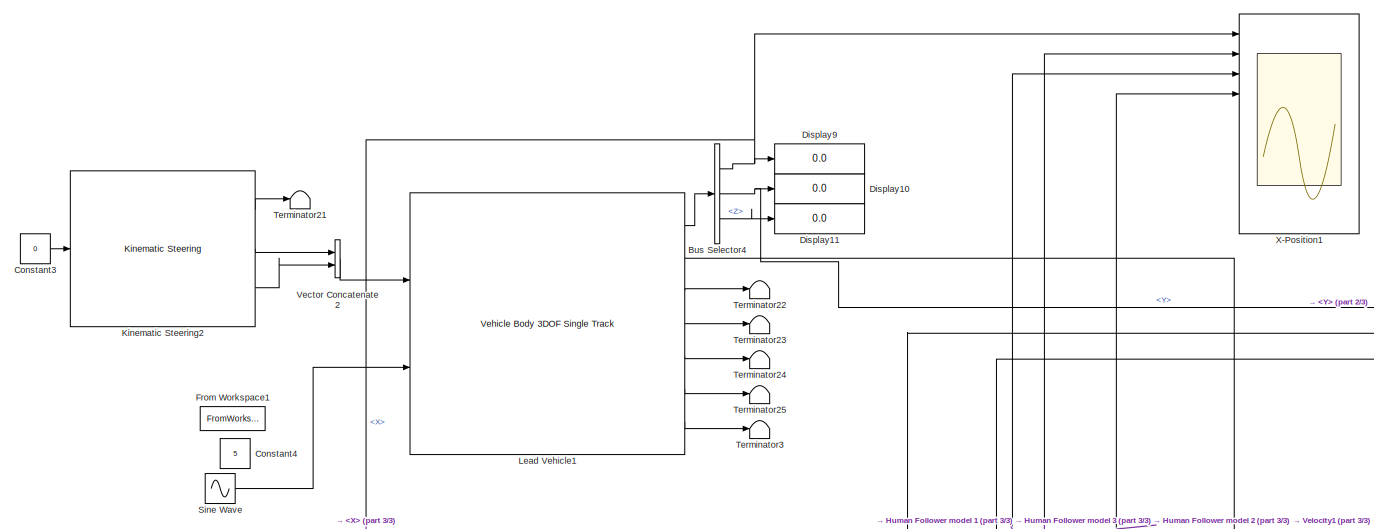
[diagram: root canvas - part 1/3, full width, top band]
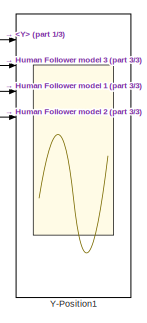
[diagram: root canvas - part 2/3, middle right region]
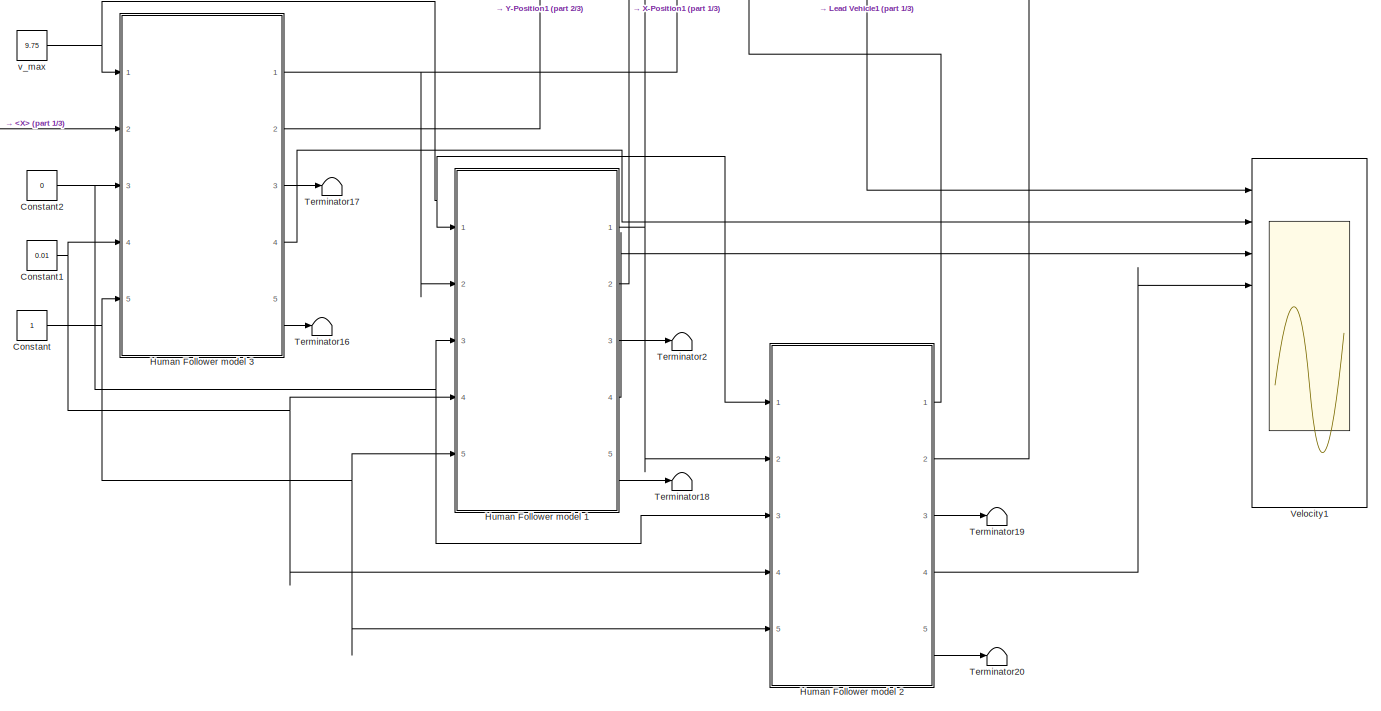
[diagram: root canvas - part 3/3, full width, bottom band]
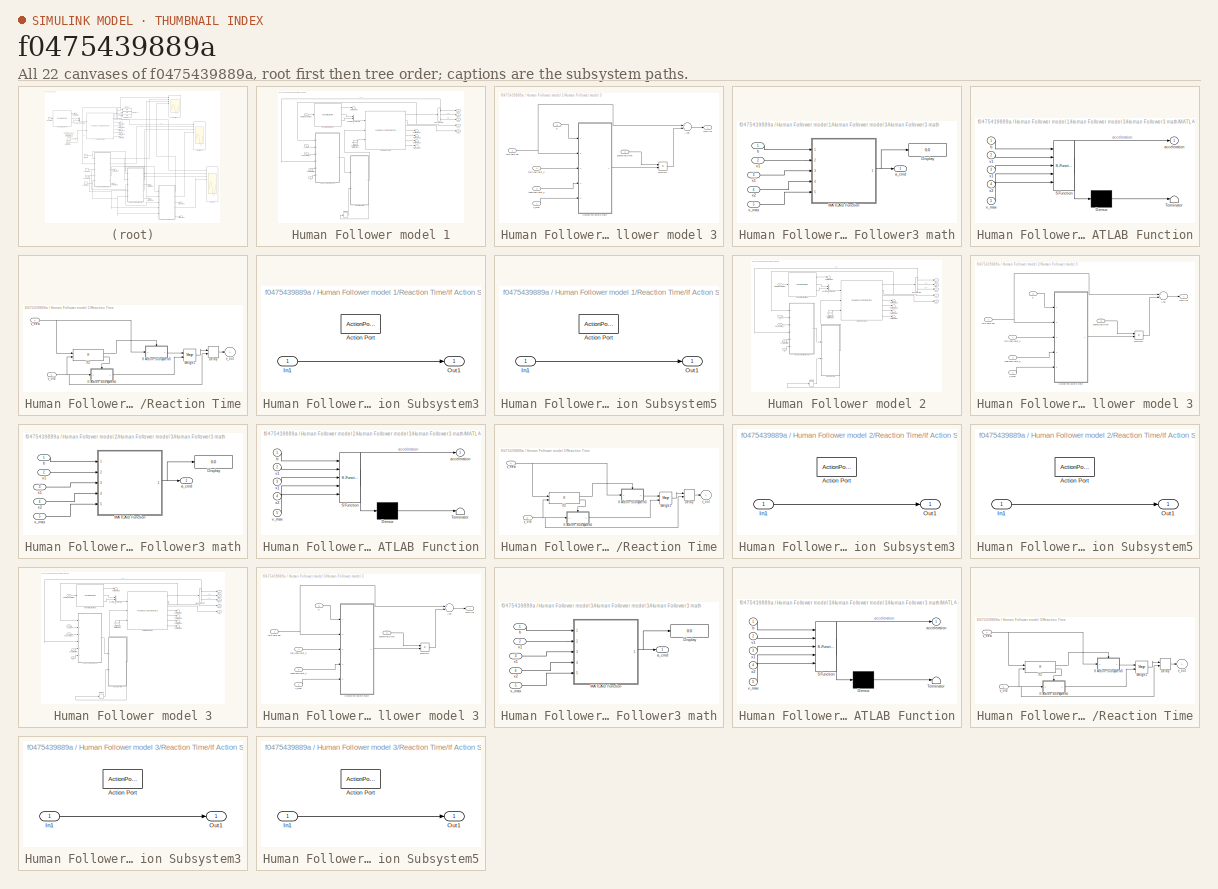
[diagram: thumbnail index - all 22 canvases of the model, root first then tree order]
MODEL slx_f0475439889a
KIND model
CONFIG AbsTol = auto
CONFIG EnableMultiTasking = off
CONFIG FixedStep = auto
CONFIG MaxStep = auto
CONFIG MinStep = auto
CONFIG RelTol = 1e-3
CONFIG SampleTimeConstraint = Unconstrained
CONFIG Solver = VariableStepAuto
CONFIG SolverName = VariableStepAuto
CONFIG StartTime = 0.0
CONFIG StopTime = 100
BLOCK [BusSelector] Bus Selector4
  OutputAsBus = off
  OutputSignals = InertFrm.Geom.Disp.X,InertFrm.Geom.Disp.Y,InertFrm.Geom.Disp.Z
  Ports = [1, 3]
BLOCK [Constant] Constant
BLOCK [Constant] Constant1
  Value = 0.01
BLOCK [Constant] Constant2
  Value = 0
BLOCK [Constant] Constant3
  Value = 0
BLOCK [Constant] Constant4
  Value = 5
BLOCK [Display] Display10
  Decimation = 1
  Ports = [1]
BLOCK [Display] Display11
  Decimation = 1
  Ports = [1]
BLOCK [Display] Display9
  Decimation = 1
  Ports = [1]
BLOCK [FromWorkspace] From Workspace1
  Commented = on
  SampleTime = 0.1
  VariableName = vel_car_1
  ZeroCross = on
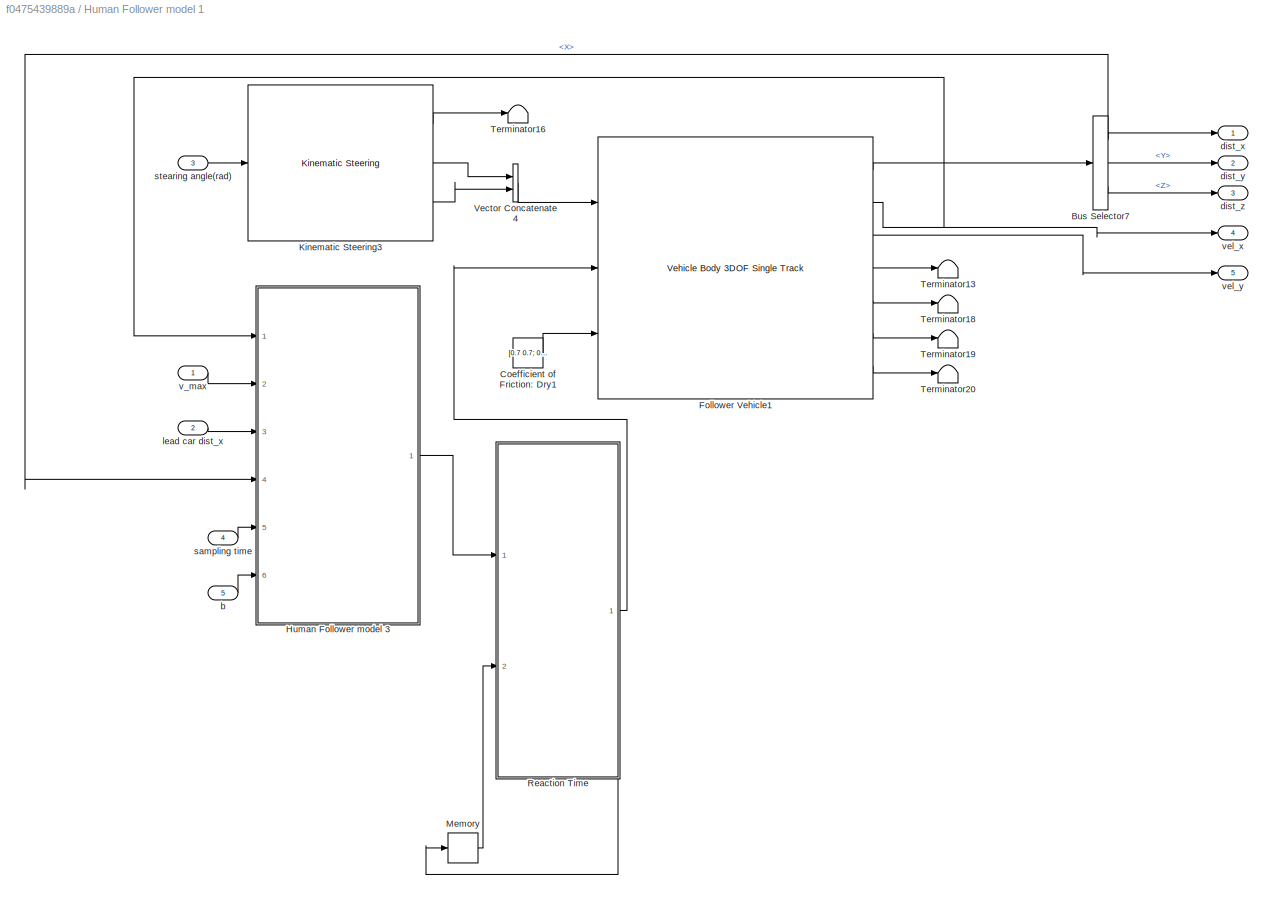
BLOCK [SubSystem] Human Follower model 1
  Ports = [5, 5]
  RequestExecContextInheritance = off
BLOCK [BusSelector] Human Follower model 1/Bus Selector7
  OutputAsBus = off
  OutputSignals = InertFrm.Cg.Disp.X,InertFrm.Cg.Disp.Y,InertFrm.Cg.Disp.Z
  Ports = [1, 3]
BLOCK [Constant] Human Follower model 1/Coefficient of Friction: Dry1
  Value = [0.7 0.7; 0.7 0.7]
BLOCK [Reference] Human Follower model 1/Follower Vehicle1  REF=autolibshared/Vehicle Body 3DOF Single Track
  Ports = [3, 7]
  SourceBlock = autolibshared/Vehicle Body 3DOF Single Track
  SourceProductBaseCode = PW
  SourceProductName = Powertrain Blockset
  SourceType = Vehicle Body 3DOF Lateral
BLOCK [SubSystem] Human Follower model 1/Human Follower model 3
  Ports = [6, 1]
  RequestExecContextInheritance = off
BLOCK [Sum] Human Follower model 1/Human Follower model 3/Add
  InputSameDT = off
  OutDataTypeStr = Inherit: Inherit via internal rule
  Ports = [2, 1]
  SaturateOnIntegerOverflow = off
BLOCK [SubSystem] Human Follower model 1/Human Follower model 3/Human Follower3 math
  Ports = [5, 1]
  RequestExecContextInheritance = off
BLOCK [Display] Human Follower model 1/Human Follower model 3/Human Follower3 math/Display
  Decimation = 1
  Ports = [1]
BLOCK [SubSystem] Human Follower model 1/Human Follower model 3/Human Follower3 math/MATLAB Function
  ErrorFcn = Stateflow.Translate.translate
  PermitHierarchicalResolution = ExplicitOnly
  Ports = [5, 1]
  RequestExecContextInheritance = off
  SFBlockType = MATLAB Function
  TreatAsAtomicUnit = on
BLOCK [Demux] Human Follower model 1/Human Follower model 3/Human Follower3 math/MATLAB Function/ Demux 
  Outputs = 1
  Ports = [1, 1]
BLOCK [S-Function] Human Follower model 1/Human Follower model 3/Human Follower3 math/MATLAB Function/ SFunction 
  EnableBusSupport = on
  FunctionName = sf_sfun
  PortCounts = [5 2]
  Ports = [5, 2]
  SFcnIsStateOwnerBlock = off
  SFunctionDeploymentMode = off
  Tag = Stateflow S-Function carPlant_OMVBandoHFHumanFollower_4 1
BLOCK [Terminator] Human Follower model 1/Human Follower model 3/Human Follower3 math/MATLAB Function/ Terminator 
BLOCK [Outport] Human Follower model 1/Human Follower model 3/Human Follower3 math/MATLAB Function/acceleration
  IconDisplay = Port number
BLOCK [Inport] Human Follower model 1/Human Follower model 3/Human Follower3 math/MATLAB Function/b
  IconDisplay = Port number
BLOCK [Inport] Human Follower model 1/Human Follower model 3/Human Follower3 math/MATLAB Function/v1
  IconDisplay = Port number
  Port = 2
BLOCK [Inport] Human Follower model 1/Human Follower model 3/Human Follower3 math/MATLAB Function/v_max
  IconDisplay = Port number
  Port = 5
BLOCK [Inport] Human Follower model 1/Human Follower model 3/Human Follower3 math/MATLAB Function/x1
  IconDisplay = Port number
  Port = 3
BLOCK [Inport] Human Follower model 1/Human Follower model 3/Human Follower3 math/MATLAB Function/x2
  IconDisplay = Port number
  Port = 4
BLOCK [Outport] Human Follower model 1/Human Follower model 3/Human Follower3 math/a_cmd
  IconDisplay = Port number
BLOCK [Inport] Human Follower model 1/Human Follower model 3/Human Follower3 math/b
  IconDisplay = Port number
BLOCK [Inport] Human Follower model 1/Human Follower model 3/Human Follower3 math/v1
  IconDisplay = Port number
  Port = 2
BLOCK [Inport] Human Follower model 1/Human Follower model 3/Human Follower3 math/v_max
  IconDisplay = Port number
  Port = 5
BLOCK [Inport] Human Follower model 1/Human Follower model 3/Human Follower3 math/x1
  IconDisplay = Port number
  Port = 3
BLOCK [Inport] Human Follower model 1/Human Follower model 3/Human Follower3 math/x2
  IconDisplay = Port number
  Port = 4
BLOCK [Product] Human Follower model 1/Human Follower model 3/Multiply
  InputSameDT = off
  OutDataTypeStr = Inherit: Inherit via internal rule
  Ports = [2, 1]
  RndMeth = Floor
  SaturateOnIntegerOverflow = off
BLOCK [Inport] Human Follower model 1/Human Follower model 3/b
  IconDisplay = Port number
  Port = 6
BLOCK [Outport] Human Follower model 1/Human Follower model 3/cmd Vel
  IconDisplay = Port number
BLOCK [Inport] Human Follower model 1/Human Follower model 3/lead cars dist_x
  IconDisplay = Port number
  Port = 3
BLOCK [Inport] Human Follower model 1/Human Follower model 3/sampling time
  IconDisplay = Port number
  Port = 5
BLOCK [Inport] Human Follower model 1/Human Follower model 3/this cars dist_x
  IconDisplay = Port number
  Port = 4
BLOCK [Inport] Human Follower model 1/Human Follower model 3/this cars vel
  IconDisplay = Port number
BLOCK [Inport] Human Follower model 1/Human Follower model 3/v_max
  IconDisplay = Port number
  Port = 2
BLOCK [Reference] Human Follower model 1/Kinematic Steering3  REF=vehdynlibsteering/Kinematic Steering
  Ports = [1, 3]
  SourceBlock = vehdynlibsteering/Kinematic Steering
  SourceProductBaseCode = VE
  SourceProductName = Vehicle Dynamics Blockset
  SourceType = Kinematic Steering
BLOCK [Memory] Human Follower model 1/Memory
BLOCK [SubSystem] Human Follower model 1/Reaction Time
  Ports = [2, 1]
  RequestExecContextInheritance = off
BLOCK [Delay] Human Follower model 1/Reaction Time/Delay
  InitialConditionSource = Input port
  InputPortMap = u0,p4
  Ports = [2, 1]
BLOCK [SubSystem] Human Follower model 1/Reaction Time/If Action Subsystem3
  Ports = [1, 1, 0, 0, 0, 0, 0, 1]
  RequestExecContextInheritance = off
  TreatAsAtomicUnit = on
BLOCK [ActionPort] Human Follower model 1/Reaction Time/If Action Subsystem3/Action Port
  ActionType = then
BLOCK [Inport] Human Follower model 1/Reaction Time/If Action Subsystem3/In1
  IconDisplay = Port number
BLOCK [Outport] Human Follower model 1/Reaction Time/If Action Subsystem3/Out1
  IconDisplay = Port number
BLOCK [SubSystem] Human Follower model 1/Reaction Time/If Action Subsystem5
  Ports = [1, 1, 0, 0, 0, 0, 0, 1]
  RequestExecContextInheritance = off
  TreatAsAtomicUnit = on
BLOCK [ActionPort] Human Follower model 1/Reaction Time/If Action Subsystem5/Action Port
  ActionType = else
BLOCK [Inport] Human Follower model 1/Reaction Time/If Action Subsystem5/In1
  IconDisplay = Port number
BLOCK [Outport] Human Follower model 1/Reaction Time/If Action Subsystem5/Out1
  IconDisplay = Port number
BLOCK [If] Human Follower model 1/Reaction Time/If2
  IfExpression = u2 ~= u1
  NumInputs = 2
  Ports = [2, 2]
BLOCK [Merge] Human Follower model 1/Reaction Time/Merge1
  Ports = [2, 1]
BLOCK [Inport] Human Follower model 1/Reaction Time/v_new
  IconDisplay = Port number
BLOCK [Inport] Human Follower model 1/Reaction Time/v_old
  IconDisplay = Port number
  Port = 2
BLOCK [Outport] Human Follower model 1/Reaction Time/v_out
  IconDisplay = Port number
BLOCK [Terminator] Human Follower model 1/Terminator13
BLOCK [Terminator] Human Follower model 1/Terminator16
BLOCK [Terminator] Human Follower model 1/Terminator18
BLOCK [Terminator] Human Follower model 1/Terminator19
BLOCK [Terminator] Human Follower model 1/Terminator20
BLOCK [Concatenate] Human Follower model 1/Vector Concatenate4
  Ports = [2, 1]
BLOCK [Inport] Human Follower model 1/b
  IconDisplay = Port number
  Port = 5
BLOCK [Outport] Human Follower model 1/dist_x
  IconDisplay = Port number
BLOCK [Outport] Human Follower model 1/dist_y
  IconDisplay = Port number
  Port = 2
BLOCK [Outport] Human Follower model 1/dist_z
  IconDisplay = Port number
  Port = 3
BLOCK [Inport] Human Follower model 1/lead car dist_x
  IconDisplay = Port number
  Port = 2
BLOCK [Inport] Human Follower model 1/sampling time
  IconDisplay = Port number
  Port = 4
BLOCK [Inport] Human Follower model 1/stearing angle(rad)
  IconDisplay = Port number
  Port = 3
BLOCK [Inport] Human Follower model 1/v_max
  IconDisplay = Port number
BLOCK [Outport] Human Follower model 1/vel_x
  IconDisplay = Port number
  Port = 4
BLOCK [Outport] Human Follower model 1/vel_y
  IconDisplay = Port number
  Port = 5
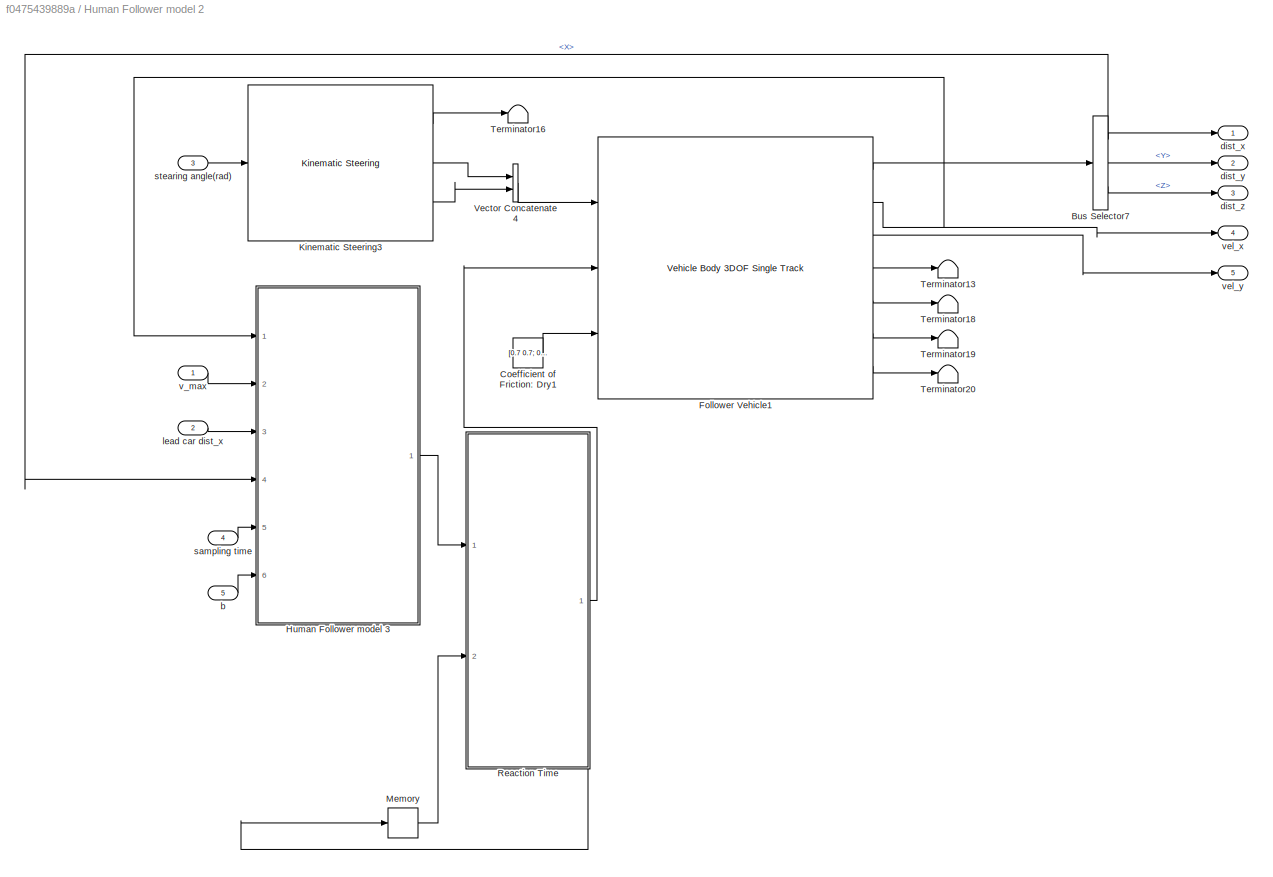
BLOCK [SubSystem] Human Follower model 2
  Ports = [5, 5]
  RequestExecContextInheritance = off
BLOCK [BusSelector] Human Follower model 2/Bus Selector7
  OutputAsBus = off
  OutputSignals = InertFrm.Cg.Disp.X,InertFrm.Cg.Disp.Y,InertFrm.Cg.Disp.Z
  Ports = [1, 3]
BLOCK [Constant] Human Follower model 2/Coefficient of Friction: Dry1
  Value = [0.7 0.7; 0.7 0.7]
BLOCK [Reference] Human Follower model 2/Follower Vehicle1  REF=autolibshared/Vehicle Body 3DOF Single Track
  Ports = [3, 7]
  SourceBlock = autolibshared/Vehicle Body 3DOF Single Track
  SourceProductBaseCode = PW
  SourceProductName = Powertrain Blockset
  SourceType = Vehicle Body 3DOF Lateral
BLOCK [SubSystem] Human Follower model 2/Human Follower model 3
  Ports = [6, 1]
  RequestExecContextInheritance = off
BLOCK [Sum] Human Follower model 2/Human Follower model 3/Add
  InputSameDT = off
  OutDataTypeStr = Inherit: Inherit via internal rule
  Ports = [2, 1]
  SaturateOnIntegerOverflow = off
BLOCK [SubSystem] Human Follower model 2/Human Follower model 3/Human Follower3 math
  Ports = [5, 1]
  RequestExecContextInheritance = off
BLOCK [Display] Human Follower model 2/Human Follower model 3/Human Follower3 math/Display
  Decimation = 1
  Ports = [1]
BLOCK [SubSystem] Human Follower model 2/Human Follower model 3/Human Follower3 math/MATLAB Function
  ErrorFcn = Stateflow.Translate.translate
  PermitHierarchicalResolution = ExplicitOnly
  Ports = [5, 1]
  RequestExecContextInheritance = off
  SFBlockType = MATLAB Function
  TreatAsAtomicUnit = on
BLOCK [Demux] Human Follower model 2/Human Follower model 3/Human Follower3 math/MATLAB Function/ Demux 
  Outputs = 1
  Ports = [1, 1]
BLOCK [S-Function] Human Follower model 2/Human Follower model 3/Human Follower3 math/MATLAB Function/ SFunction 
  EnableBusSupport = on
  FunctionName = sf_sfun
  PortCounts = [5 2]
  Ports = [5, 2]
  SFcnIsStateOwnerBlock = off
  SFunctionDeploymentMode = off
  Tag = Stateflow S-Function carPlant_OMVBandoHFHumanFollower_4 2
BLOCK [Terminator] Human Follower model 2/Human Follower model 3/Human Follower3 math/MATLAB Function/ Terminator 
BLOCK [Outport] Human Follower model 2/Human Follower model 3/Human Follower3 math/MATLAB Function/acceleration
  IconDisplay = Port number
BLOCK [Inport] Human Follower model 2/Human Follower model 3/Human Follower3 math/MATLAB Function/b
  IconDisplay = Port number
BLOCK [Inport] Human Follower model 2/Human Follower model 3/Human Follower3 math/MATLAB Function/v1
  IconDisplay = Port number
  Port = 2
BLOCK [Inport] Human Follower model 2/Human Follower model 3/Human Follower3 math/MATLAB Function/v_max
  IconDisplay = Port number
  Port = 5
BLOCK [Inport] Human Follower model 2/Human Follower model 3/Human Follower3 math/MATLAB Function/x1
  IconDisplay = Port number
  Port = 3
BLOCK [Inport] Human Follower model 2/Human Follower model 3/Human Follower3 math/MATLAB Function/x2
  IconDisplay = Port number
  Port = 4
BLOCK [Outport] Human Follower model 2/Human Follower model 3/Human Follower3 math/a_cmd
  IconDisplay = Port number
BLOCK [Inport] Human Follower model 2/Human Follower model 3/Human Follower3 math/b
  IconDisplay = Port number
BLOCK [Inport] Human Follower model 2/Human Follower model 3/Human Follower3 math/v1
  IconDisplay = Port number
  Port = 2
BLOCK [Inport] Human Follower model 2/Human Follower model 3/Human Follower3 math/v_max
  IconDisplay = Port number
  Port = 5
BLOCK [Inport] Human Follower model 2/Human Follower model 3/Human Follower3 math/x1
  IconDisplay = Port number
  Port = 3
BLOCK [Inport] Human Follower model 2/Human Follower model 3/Human Follower3 math/x2
  IconDisplay = Port number
  Port = 4
BLOCK [Product] Human Follower model 2/Human Follower model 3/Multiply
  InputSameDT = off
  OutDataTypeStr = Inherit: Inherit via internal rule
  Ports = [2, 1]
  RndMeth = Floor
  SaturateOnIntegerOverflow = off
BLOCK [Inport] Human Follower model 2/Human Follower model 3/b
  IconDisplay = Port number
  Port = 6
BLOCK [Outport] Human Follower model 2/Human Follower model 3/cmd Vel
  IconDisplay = Port number
BLOCK [Inport] Human Follower model 2/Human Follower model 3/lead cars dist_x
  IconDisplay = Port number
  Port = 3
BLOCK [Inport] Human Follower model 2/Human Follower model 3/sampling time
  IconDisplay = Port number
  Port = 5
BLOCK [Inport] Human Follower model 2/Human Follower model 3/this cars dist_x
  IconDisplay = Port number
  Port = 4
BLOCK [Inport] Human Follower model 2/Human Follower model 3/this cars vel
  IconDisplay = Port number
BLOCK [Inport] Human Follower model 2/Human Follower model 3/v_max
  IconDisplay = Port number
  Port = 2
BLOCK [Reference] Human Follower model 2/Kinematic Steering3  REF=vehdynlibsteering/Kinematic Steering
  Ports = [1, 3]
  SourceBlock = vehdynlibsteering/Kinematic Steering
  SourceProductBaseCode = VE
  SourceProductName = Vehicle Dynamics Blockset
  SourceType = Kinematic Steering
BLOCK [Memory] Human Follower model 2/Memory
BLOCK [SubSystem] Human Follower model 2/Reaction Time
  Ports = [2, 1]
  RequestExecContextInheritance = off
BLOCK [Delay] Human Follower model 2/Reaction Time/Delay
  InitialConditionSource = Input port
  InputPortMap = u0,p4
  Ports = [2, 1]
BLOCK [SubSystem] Human Follower model 2/Reaction Time/If Action Subsystem3
  Ports = [1, 1, 0, 0, 0, 0, 0, 1]
  RequestExecContextInheritance = off
  TreatAsAtomicUnit = on
BLOCK [ActionPort] Human Follower model 2/Reaction Time/If Action Subsystem3/Action Port
  ActionType = then
BLOCK [Inport] Human Follower model 2/Reaction Time/If Action Subsystem3/In1
  IconDisplay = Port number
BLOCK [Outport] Human Follower model 2/Reaction Time/If Action Subsystem3/Out1
  IconDisplay = Port number
BLOCK [SubSystem] Human Follower model 2/Reaction Time/If Action Subsystem5
  Ports = [1, 1, 0, 0, 0, 0, 0, 1]
  RequestExecContextInheritance = off
  TreatAsAtomicUnit = on
BLOCK [ActionPort] Human Follower model 2/Reaction Time/If Action Subsystem5/Action Port
  ActionType = else
BLOCK [Inport] Human Follower model 2/Reaction Time/If Action Subsystem5/In1
  IconDisplay = Port number
BLOCK [Outport] Human Follower model 2/Reaction Time/If Action Subsystem5/Out1
  IconDisplay = Port number
BLOCK [If] Human Follower model 2/Reaction Time/If2
  IfExpression = u2 ~= u1
  NumInputs = 2
  Ports = [2, 2]
BLOCK [Merge] Human Follower model 2/Reaction Time/Merge1
  Ports = [2, 1]
BLOCK [Inport] Human Follower model 2/Reaction Time/v_new
  IconDisplay = Port number
BLOCK [Inport] Human Follower model 2/Reaction Time/v_old
  IconDisplay = Port number
  Port = 2
BLOCK [Outport] Human Follower model 2/Reaction Time/v_out
  IconDisplay = Port number
BLOCK [Terminator] Human Follower model 2/Terminator13
BLOCK [Terminator] Human Follower model 2/Terminator16
BLOCK [Terminator] Human Follower model 2/Terminator18
BLOCK [Terminator] Human Follower model 2/Terminator19
BLOCK [Terminator] Human Follower model 2/Terminator20
BLOCK [Concatenate] Human Follower model 2/Vector Concatenate4
  Ports = [2, 1]
BLOCK [Inport] Human Follower model 2/b
  IconDisplay = Port number
  Port = 5
BLOCK [Outport] Human Follower model 2/dist_x
  IconDisplay = Port number
BLOCK [Outport] Human Follower model 2/dist_y
  IconDisplay = Port number
  Port = 2
BLOCK [Outport] Human Follower model 2/dist_z
  IconDisplay = Port number
  Port = 3
BLOCK [Inport] Human Follower model 2/lead car dist_x
  IconDisplay = Port number
  Port = 2
BLOCK [Inport] Human Follower model 2/sampling time
  IconDisplay = Port number
  Port = 4
BLOCK [Inport] Human Follower model 2/stearing angle(rad)
  IconDisplay = Port number
  Port = 3
BLOCK [Inport] Human Follower model 2/v_max
  IconDisplay = Port number
BLOCK [Outport] Human Follower model 2/vel_x
  IconDisplay = Port number
  Port = 4
BLOCK [Outport] Human Follower model 2/vel_y
  IconDisplay = Port number
  Port = 5
BLOCK [SubSystem] Human Follower model 3
  Ports = [5, 5]
  RequestExecContextInheritance = off
BLOCK [BusSelector] Human Follower model 3/Bus Selector7
  OutputAsBus = off
  OutputSignals = InertFrm.Cg.Disp.X,InertFrm.Cg.Disp.Y,InertFrm.Cg.Disp.Z
  Ports = [1, 3]
BLOCK [Constant] Human Follower model 3/Coefficient of Friction: Dry1
  Value = [0.7 0.7; 0.7 0.7]
BLOCK [Reference] Human Follower model 3/Follower Vehicle1  REF=autolibshared/Vehicle Body 3DOF Single Track
  Ports = [3, 7]
  SourceBlock = autolibshared/Vehicle Body 3DOF Single Track
  SourceProductBaseCode = PW
  SourceProductName = Powertrain Blockset
  SourceType = Vehicle Body 3DOF Lateral
BLOCK [SubSystem] Human Follower model 3/Human Follower model 3
  Ports = [6, 1]
  RequestExecContextInheritance = off
BLOCK [Sum] Human Follower model 3/Human Follower model 3/Add
  InputSameDT = off
  OutDataTypeStr = Inherit: Inherit via internal rule
  Ports = [2, 1]
  SaturateOnIntegerOverflow = off
BLOCK [SubSystem] Human Follower model 3/Human Follower model 3/Human Follower3 math
  Ports = [5, 1]
  RequestExecContextInheritance = off
BLOCK [Display] Human Follower model 3/Human Follower model 3/Human Follower3 math/Display
  Decimation = 1
  Ports = [1]
BLOCK [SubSystem] Human Follower model 3/Human Follower model 3/Human Follower3 math/MATLAB Function
  ErrorFcn = Stateflow.Translate.translate
  PermitHierarchicalResolution = ExplicitOnly
  Ports = [5, 1]
  RequestExecContextInheritance = off
  SFBlockType = MATLAB Function
  TreatAsAtomicUnit = on
BLOCK [Demux] Human Follower model 3/Human Follower model 3/Human Follower3 math/MATLAB Function/ Demux 
  Outputs = 1
  Ports = [1, 1]
BLOCK [S-Function] Human Follower model 3/Human Follower model 3/Human Follower3 math/MATLAB Function/ SFunction 
  EnableBusSupport = on
  FunctionName = sf_sfun
  PortCounts = [5 2]
  Ports = [5, 2]
  SFcnIsStateOwnerBlock = off
  SFunctionDeploymentMode = off
  Tag = Stateflow S-Function carPlant_OMVBandoHFHumanFollower_4 5
BLOCK [Terminator] Human Follower model 3/Human Follower model 3/Human Follower3 math/MATLAB Function/ Terminator 
BLOCK [Outport] Human Follower model 3/Human Follower model 3/Human Follower3 math/MATLAB Function/acceleration
  IconDisplay = Port number
BLOCK [Inport] Human Follower model 3/Human Follower model 3/Human Follower3 math/MATLAB Function/b
  IconDisplay = Port number
BLOCK [Inport] Human Follower model 3/Human Follower model 3/Human Follower3 math/MATLAB Function/v1
  IconDisplay = Port number
  Port = 2
BLOCK [Inport] Human Follower model 3/Human Follower model 3/Human Follower3 math/MATLAB Function/v_max
  IconDisplay = Port number
  Port = 5
BLOCK [Inport] Human Follower model 3/Human Follower model 3/Human Follower3 math/MATLAB Function/x1
  IconDisplay = Port number
  Port = 3
BLOCK [Inport] Human Follower model 3/Human Follower model 3/Human Follower3 math/MATLAB Function/x2
  IconDisplay = Port number
  Port = 4
BLOCK [Outport] Human Follower model 3/Human Follower model 3/Human Follower3 math/a_cmd
  IconDisplay = Port number
BLOCK [Inport] Human Follower model 3/Human Follower model 3/Human Follower3 math/b
  IconDisplay = Port number
BLOCK [Inport] Human Follower model 3/Human Follower model 3/Human Follower3 math/v1
  IconDisplay = Port number
  Port = 2
BLOCK [Inport] Human Follower model 3/Human Follower model 3/Human Follower3 math/v_max
  IconDisplay = Port number
  Port = 5
BLOCK [Inport] Human Follower model 3/Human Follower model 3/Human Follower3 math/x1
  IconDisplay = Port number
  Port = 3
BLOCK [Inport] Human Follower model 3/Human Follower model 3/Human Follower3 math/x2
  IconDisplay = Port number
  Port = 4
BLOCK [Product] Human Follower model 3/Human Follower model 3/Multiply
  InputSameDT = off
  OutDataTypeStr = Inherit: Inherit via internal rule
  Ports = [2, 1]
  RndMeth = Floor
  SaturateOnIntegerOverflow = off
BLOCK [Inport] Human Follower model 3/Human Follower model 3/b
  IconDisplay = Port number
  Port = 6
BLOCK [Outport] Human Follower model 3/Human Follower model 3/cmd Vel
  IconDisplay = Port number
BLOCK [Inport] Human Follower model 3/Human Follower model 3/lead cars dist_x
  IconDisplay = Port number
  Port = 3
BLOCK [Inport] Human Follower model 3/Human Follower model 3/sampling time
  IconDisplay = Port number
  Port = 5
BLOCK [Inport] Human Follower model 3/Human Follower model 3/this cars dist_x
  IconDisplay = Port number
  Port = 4
BLOCK [Inport] Human Follower model 3/Human Follower model 3/this cars vel
  IconDisplay = Port number
BLOCK [Inport] Human Follower model 3/Human Follower model 3/v_max
  IconDisplay = Port number
  Port = 2
BLOCK [Reference] Human Follower model 3/Kinematic Steering3  REF=vehdynlibsteering/Kinematic Steering
  Ports = [1, 3]
  SourceBlock = vehdynlibsteering/Kinematic Steering
  SourceProductBaseCode = VE
  SourceProductName = Vehicle Dynamics Blockset
  SourceType = Kinematic Steering
BLOCK [Memory] Human Follower model 3/Memory
BLOCK [SubSystem] Human Follower model 3/Reaction Time
  Ports = [2, 1]
  RequestExecContextInheritance = off
BLOCK [Delay] Human Follower model 3/Reaction Time/Delay
  InitialConditionSource = Input port
  InputPortMap = u0,p4
  Ports = [2, 1]
BLOCK [SubSystem] Human Follower model 3/Reaction Time/If Action Subsystem3
  Ports = [1, 1, 0, 0, 0, 0, 0, 1]
  RequestExecContextInheritance = off
  TreatAsAtomicUnit = on
BLOCK [ActionPort] Human Follower model 3/Reaction Time/If Action Subsystem3/Action Port
  ActionType = then
BLOCK [Inport] Human Follower model 3/Reaction Time/If Action Subsystem3/In1
  IconDisplay = Port number
BLOCK [Outport] Human Follower model 3/Reaction Time/If Action Subsystem3/Out1
  IconDisplay = Port number
BLOCK [SubSystem] Human Follower model 3/Reaction Time/If Action Subsystem5
  Ports = [1, 1, 0, 0, 0, 0, 0, 1]
  RequestExecContextInheritance = off
  TreatAsAtomicUnit = on
BLOCK [ActionPort] Human Follower model 3/Reaction Time/If Action Subsystem5/Action Port
  ActionType = else
BLOCK [Inport] Human Follower model 3/Reaction Time/If Action Subsystem5/In1
  IconDisplay = Port number
BLOCK [Outport] Human Follower model 3/Reaction Time/If Action Subsystem5/Out1
  IconDisplay = Port number
BLOCK [If] Human Follower model 3/Reaction Time/If2
  IfExpression = u2 ~= u1
  NumInputs = 2
  Ports = [2, 2]
BLOCK [Merge] Human Follower model 3/Reaction Time/Merge1
  Ports = [2, 1]
BLOCK [Inport] Human Follower model 3/Reaction Time/v_new
  IconDisplay = Port number
BLOCK [Inport] Human Follower model 3/Reaction Time/v_old
  IconDisplay = Port number
  Port = 2
BLOCK [Outport] Human Follower model 3/Reaction Time/v_out
  IconDisplay = Port number
BLOCK [Terminator] Human Follower model 3/Terminator13
BLOCK [Terminator] Human Follower model 3/Terminator16
BLOCK [Terminator] Human Follower model 3/Terminator18
BLOCK [Terminator] Human Follower model 3/Terminator19
BLOCK [Terminator] Human Follower model 3/Terminator20
BLOCK [Concatenate] Human Follower model 3/Vector Concatenate4
  Ports = [2, 1]
BLOCK [Inport] Human Follower model 3/b
  IconDisplay = Port number
  Port = 5
BLOCK [Outport] Human Follower model 3/dist_x
  IconDisplay = Port number
BLOCK [Outport] Human Follower model 3/dist_y
  IconDisplay = Port number
  Port = 2
BLOCK [Outport] Human Follower model 3/dist_z
  IconDisplay = Port number
  Port = 3
BLOCK [Inport] Human Follower model 3/lead car dist_x
  IconDisplay = Port number
  Port = 2
BLOCK [Inport] Human Follower model 3/sampling time
  IconDisplay = Port number
  Port = 4
BLOCK [Inport] Human Follower model 3/stearing angle(rad)
  IconDisplay = Port number
  Port = 3
BLOCK [Inport] Human Follower model 3/v_max
  IconDisplay = Port number
BLOCK [Outport] Human Follower model 3/vel_x
  IconDisplay = Port number
  Port = 4
BLOCK [Outport] Human Follower model 3/vel_y
  IconDisplay = Port number
  Port = 5
BLOCK [Reference] Kinematic Steering2  REF=vehdynlibsteering/Kinematic Steering
  Ports = [1, 3]
  SourceBlock = vehdynlibsteering/Kinematic Steering
  SourceProductBaseCode = VE
  SourceProductName = Vehicle Dynamics Blockset
  SourceType = Kinematic Steering
BLOCK [Reference] Lead Vehicle1  REF=autolibshared/Vehicle Body 3DOF Single Track
  Ports = [2, 7]
  SourceBlock = autolibshared/Vehicle Body 3DOF Single Track
  SourceProductBaseCode = PW
  SourceProductName = Powertrain Blockset
  SourceType = Vehicle Body 3DOF Lateral
BLOCK [Sin] Sine Wave
  Amplitude = 5
  Frequency = 0.05
  Ports = [0, 1]
  SampleTime = 0
BLOCK [Terminator] Terminator16
BLOCK [Terminator] Terminator17
BLOCK [Terminator] Terminator18
BLOCK [Terminator] Terminator19
BLOCK [Terminator] Terminator2
BLOCK [Terminator] Terminator20
BLOCK [Terminator] Terminator21
BLOCK [Terminator] Terminator22
BLOCK [Terminator] Terminator23
BLOCK [Terminator] Terminator24
BLOCK [Terminator] Terminator25
BLOCK [Terminator] Terminator3
BLOCK [Concatenate] Vector Concatenate2
  Ports = [2, 1]
BLOCK [Scope] Velocity1
  Floating = off
  NumInputPorts = 10
  Ports = [10]
  ScopeSpecificationString = Simulink.scopes.TimeScopeBlockCfg('CurrentConfiguration', extmgr.ConfigurationSet(extmgr.Configuration('Core','General UI',true),extmgr.Configuration('Core','Source UI',true),extmgr.Configuration('Sources','WiredSimulink',true,'DataLoggingVariableName','vel','DataLogging',true,'DataLoggingSaveFormat','StructureWithTime'),extmgr.Configuration('Visuals','Time Domain',true,'SerializedDisplays',{struc...<+1887ch>
BLOCK [Scope] X-Position1
  Floating = off
  NumInputPorts = 10
  Ports = [10]
  ScopeSpecificationString = Simulink.scopes.TimeScopeBlockCfg('CurrentConfiguration', extmgr.ConfigurationSet(extmgr.Configuration('Core','General UI',true),extmgr.Configuration('Core','Source UI',true),extmgr.Configuration('Sources','WiredSimulink',true,'DataLoggingVariableName','xpos','DataLogging',true,'DataLoggingSaveFormat','StructureWithTime'),extmgr.Configuration('Visuals','Time Domain',true,'SerializedDisplays',{stru...<+1677ch>
BLOCK [Scope] Y-Position1
  Floating = off
  NumInputPorts = 10
  Ports = [10]
  ScopeSpecificationString = Simulink.scopes.TimeScopeBlockCfg('CurrentConfiguration', extmgr.ConfigurationSet(extmgr.Configuration('Core','General UI',true),extmgr.Configuration('Core','Source UI',true),extmgr.Configuration('Sources','WiredSimulink',true,'DataLoggingVariableName','ypos','DataLoggingSaveFormat','StructureWithTime','DataLogging',true),extmgr.Configuration('Visuals','Time Domain',true,'SerializedDisplays',{stru...<+1656ch>
BLOCK [Constant] v_max 
  Value = 9.75
NET Bus Selector4:1 -> Display9:1, Human Follower model 3:2, X-Position1:1
NET Bus Selector4:2 -> Display10:1, Y-Position1:1
LINE Bus Selector4:3 -> Display11:1
NET Constant1:1 -> Human Follower model 1:4, Human Follower model 2:4, Human Follower model 3:4
NET Constant2:1 -> Human Follower model 1:3, Human Follower model 2:3, Human Follower model 3:3
LINE Constant3:1 -> Kinematic Steering2:1
NET Constant:1 -> Human Follower model 1:5, Human Follower model 2:5, Human Follower model 3:5
NET Human Follower model 1/Bus Selector7:1 -> Human Follower model 1/Human Follower model 3:4, Human Follower model 1/dist_x:1
LINE Human Follower model 1/Bus Selector7:2 -> Human Follower model 1/dist_y:1
LINE Human Follower model 1/Bus Selector7:3 -> Human Follower model 1/dist_z:1
LINE Human Follower model 1/Coefficient of Friction: Dry1:1 -> Human Follower model 1/Follower Vehicle1:3
LINE Human Follower model 1/Follower Vehicle1:1 -> Human Follower model 1/Bus Selector7:1
NET Human Follower model 1/Follower Vehicle1:2 -> Human Follower model 1/Human Follower model 3:1, Human Follower model 1/vel_x:1
LINE Human Follower model 1/Follower Vehicle1:3 -> Human Follower model 1/vel_y:1
LINE Human Follower model 1/Follower Vehicle1:4 -> Human Follower model 1/Terminator13:1
LINE Human Follower model 1/Follower Vehicle1:5 -> Human Follower model 1/Terminator18:1
LINE Human Follower model 1/Follower Vehicle1:6 -> Human Follower model 1/Terminator19:1
LINE Human Follower model 1/Follower Vehicle1:7 -> Human Follower model 1/Terminator20:1
LINE Human Follower model 1/Human Follower model 3/Add:1 -> Human Follower model 1/Human Follower model 3/cmd Vel:1
NET Human Follower model 1/Human Follower model 3/Human Follower3 math/MATLAB Function:1 -> Human Follower model 1/Human Follower model 3/Human Follower3 math/Display:1, Human Follower model 1/Human Follower model 3/Human Follower3 math/a_cmd:1
LINE Human Follower model 1/Human Follower model 3/Human Follower3 math/b:1 -> Human Follower model 1/Human Follower model 3/Human Follower3 math/MATLAB Function:1
LINE Human Follower model 1/Human Follower model 3/Human Follower3 math/v1:1 -> Human Follower model 1/Human Follower model 3/Human Follower3 math/MATLAB Function:2
LINE Human Follower model 1/Human Follower model 3/Human Follower3 math/v_max:1 -> Human Follower model 1/Human Follower model 3/Human Follower3 math/MATLAB Function:5
LINE Human Follower model 1/Human Follower model 3/Human Follower3 math/x1:1 -> Human Follower model 1/Human Follower model 3/Human Follower3 math/MATLAB Function:3
LINE Human Follower model 1/Human Follower model 3/Human Follower3 math/x2:1 -> Human Follower model 1/Human Follower model 3/Human Follower3 math/MATLAB Function:4
LINE Human Follower model 1/Human Follower model 3/Human Follower3 math:1 -> Human Follower model 1/Human Follower model 3/Multiply:2
LINE Human Follower model 1/Human Follower model 3/Multiply:1 -> Human Follower model 1/Human Follower model 3/Add:2
LINE Human Follower model 1/Human Follower model 3/b:1 -> Human Follower model 1/Human Follower model 3/Human Follower3 math:1
LINE Human Follower model 1/Human Follower model 3/lead cars dist_x:1 -> Human Follower model 1/Human Follower model 3/Human Follower3 math:4
LINE Human Follower model 1/Human Follower model 3/sampling time:1 -> Human Follower model 1/Human Follower model 3/Multiply:1
LINE Human Follower model 1/Human Follower model 3/this cars dist_x:1 -> Human Follower model 1/Human Follower model 3/Human Follower3 math:3
NET Human Follower model 1/Human Follower model 3/this cars vel:1 -> Human Follower model 1/Human Follower model 3/Add:1, Human Follower model 1/Human Follower model 3/Human Follower3 math:2
LINE Human Follower model 1/Human Follower model 3/v_max:1 -> Human Follower model 1/Human Follower model 3/Human Follower3 math:5
LINE Human Follower model 1/Human Follower model 3:1 -> Human Follower model 1/Reaction Time:1
LINE Human Follower model 1/Kinematic Steering3:1 -> Human Follower model 1/Terminator16:1
LINE Human Follower model 1/Kinematic Steering3:2 -> Human Follower model 1/Vector Concatenate4:1
LINE Human Follower model 1/Kinematic Steering3:3 -> Human Follower model 1/Vector Concatenate4:2
LINE Human Follower model 1/Memory:1 -> Human Follower model 1/Reaction Time:2
LINE Human Follower model 1/Reaction Time/Delay:1 -> Human Follower model 1/Reaction Time/v_out:1
LINE Human Follower model 1/Reaction Time/If Action Subsystem3/In1:1 -> Human Follower model 1/Reaction Time/If Action Subsystem3/Out1:1
LINE Human Follower model 1/Reaction Time/If Action Subsystem3:1 -> Human Follower model 1/Reaction Time/Merge1:1
LINE Human Follower model 1/Reaction Time/If Action Subsystem5/In1:1 -> Human Follower model 1/Reaction Time/If Action Subsystem5/Out1:1
LINE Human Follower model 1/Reaction Time/If Action Subsystem5:1 -> Human Follower model 1/Reaction Time/Merge1:2
LINE Human Follower model 1/Reaction Time/If2:1 -> Human Follower model 1/Reaction Time/If Action Subsystem3:ifaction
LINE Human Follower model 1/Reaction Time/If2:2 -> Human Follower model 1/Reaction Time/If Action Subsystem5:ifaction
LINE Human Follower model 1/Reaction Time/Merge1:1 -> Human Follower model 1/Reaction Time/Delay:1
NET Human Follower model 1/Reaction Time/v_new:1 -> Human Follower model 1/Reaction Time/If Action Subsystem3:1, Human Follower model 1/Reaction Time/If2:1
NET Human Follower model 1/Reaction Time/v_old:1 -> Human Follower model 1/Reaction Time/Delay:2, Human Follower model 1/Reaction Time/If Action Subsystem5:1, Human Follower model 1/Reaction Time/If2:2
NET Human Follower model 1/Reaction Time:1 -> Human Follower model 1/Follower Vehicle1:2, Human Follower model 1/Memory:1
LINE Human Follower model 1/Vector Concatenate4:1 -> Human Follower model 1/Follower Vehicle1:1
LINE Human Follower model 1/b:1 -> Human Follower model 1/Human Follower model 3:6
LINE Human Follower model 1/lead car dist_x:1 -> Human Follower model 1/Human Follower model 3:3
LINE Human Follower model 1/sampling time:1 -> Human Follower model 1/Human Follower model 3:5
LINE Human Follower model 1/stearing angle(rad):1 -> Human Follower model 1/Kinematic Steering3:1
LINE Human Follower model 1/v_max:1 -> Human Follower model 1/Human Follower model 3:2
NET Human Follower model 1:1 -> Human Follower model 2:2, X-Position1:3
LINE Human Follower model 1:2 -> Y-Position1:3
LINE Human Follower model 1:3 -> Terminator2:1
LINE Human Follower model 1:4 -> Velocity1:3
LINE Human Follower model 1:5 -> Terminator18:1
NET Human Follower model 2/Bus Selector7:1 -> Human Follower model 2/Human Follower model 3:4, Human Follower model 2/dist_x:1
LINE Human Follower model 2/Bus Selector7:2 -> Human Follower model 2/dist_y:1
LINE Human Follower model 2/Bus Selector7:3 -> Human Follower model 2/dist_z:1
LINE Human Follower model 2/Coefficient of Friction: Dry1:1 -> Human Follower model 2/Follower Vehicle1:3
LINE Human Follower model 2/Follower Vehicle1:1 -> Human Follower model 2/Bus Selector7:1
NET Human Follower model 2/Follower Vehicle1:2 -> Human Follower model 2/Human Follower model 3:1, Human Follower model 2/vel_x:1
LINE Human Follower model 2/Follower Vehicle1:3 -> Human Follower model 2/vel_y:1
LINE Human Follower model 2/Follower Vehicle1:4 -> Human Follower model 2/Terminator13:1
LINE Human Follower model 2/Follower Vehicle1:5 -> Human Follower model 2/Terminator18:1
LINE Human Follower model 2/Follower Vehicle1:6 -> Human Follower model 2/Terminator19:1
LINE Human Follower model 2/Follower Vehicle1:7 -> Human Follower model 2/Terminator20:1
LINE Human Follower model 2/Human Follower model 3/Add:1 -> Human Follower model 2/Human Follower model 3/cmd Vel:1
NET Human Follower model 2/Human Follower model 3/Human Follower3 math/MATLAB Function:1 -> Human Follower model 2/Human Follower model 3/Human Follower3 math/Display:1, Human Follower model 2/Human Follower model 3/Human Follower3 math/a_cmd:1
LINE Human Follower model 2/Human Follower model 3/Human Follower3 math/b:1 -> Human Follower model 2/Human Follower model 3/Human Follower3 math/MATLAB Function:1
LINE Human Follower model 2/Human Follower model 3/Human Follower3 math/v1:1 -> Human Follower model 2/Human Follower model 3/Human Follower3 math/MATLAB Function:2
LINE Human Follower model 2/Human Follower model 3/Human Follower3 math/v_max:1 -> Human Follower model 2/Human Follower model 3/Human Follower3 math/MATLAB Function:5
LINE Human Follower model 2/Human Follower model 3/Human Follower3 math/x1:1 -> Human Follower model 2/Human Follower model 3/Human Follower3 math/MATLAB Function:3
LINE Human Follower model 2/Human Follower model 3/Human Follower3 math/x2:1 -> Human Follower model 2/Human Follower model 3/Human Follower3 math/MATLAB Function:4
LINE Human Follower model 2/Human Follower model 3/Human Follower3 math:1 -> Human Follower model 2/Human Follower model 3/Multiply:2
LINE Human Follower model 2/Human Follower model 3/Multiply:1 -> Human Follower model 2/Human Follower model 3/Add:2
LINE Human Follower model 2/Human Follower model 3/b:1 -> Human Follower model 2/Human Follower model 3/Human Follower3 math:1
LINE Human Follower model 2/Human Follower model 3/lead cars dist_x:1 -> Human Follower model 2/Human Follower model 3/Human Follower3 math:4
LINE Human Follower model 2/Human Follower model 3/sampling time:1 -> Human Follower model 2/Human Follower model 3/Multiply:1
LINE Human Follower model 2/Human Follower model 3/this cars dist_x:1 -> Human Follower model 2/Human Follower model 3/Human Follower3 math:3
NET Human Follower model 2/Human Follower model 3/this cars vel:1 -> Human Follower model 2/Human Follower model 3/Add:1, Human Follower model 2/Human Follower model 3/Human Follower3 math:2
LINE Human Follower model 2/Human Follower model 3/v_max:1 -> Human Follower model 2/Human Follower model 3/Human Follower3 math:5
LINE Human Follower model 2/Human Follower model 3:1 -> Human Follower model 2/Reaction Time:1
LINE Human Follower model 2/Kinematic Steering3:1 -> Human Follower model 2/Terminator16:1
LINE Human Follower model 2/Kinematic Steering3:2 -> Human Follower model 2/Vector Concatenate4:1
LINE Human Follower model 2/Kinematic Steering3:3 -> Human Follower model 2/Vector Concatenate4:2
LINE Human Follower model 2/Memory:1 -> Human Follower model 2/Reaction Time:2
LINE Human Follower model 2/Reaction Time/Delay:1 -> Human Follower model 2/Reaction Time/v_out:1
LINE Human Follower model 2/Reaction Time/If Action Subsystem3/In1:1 -> Human Follower model 2/Reaction Time/If Action Subsystem3/Out1:1
LINE Human Follower model 2/Reaction Time/If Action Subsystem3:1 -> Human Follower model 2/Reaction Time/Merge1:1
LINE Human Follower model 2/Reaction Time/If Action Subsystem5/In1:1 -> Human Follower model 2/Reaction Time/If Action Subsystem5/Out1:1
LINE Human Follower model 2/Reaction Time/If Action Subsystem5:1 -> Human Follower model 2/Reaction Time/Merge1:2
LINE Human Follower model 2/Reaction Time/If2:1 -> Human Follower model 2/Reaction Time/If Action Subsystem3:ifaction
LINE Human Follower model 2/Reaction Time/If2:2 -> Human Follower model 2/Reaction Time/If Action Subsystem5:ifaction
LINE Human Follower model 2/Reaction Time/Merge1:1 -> Human Follower model 2/Reaction Time/Delay:1
NET Human Follower model 2/Reaction Time/v_new:1 -> Human Follower model 2/Reaction Time/If Action Subsystem3:1, Human Follower model 2/Reaction Time/If2:1
NET Human Follower model 2/Reaction Time/v_old:1 -> Human Follower model 2/Reaction Time/Delay:2, Human Follower model 2/Reaction Time/If Action Subsystem5:1, Human Follower model 2/Reaction Time/If2:2
NET Human Follower model 2/Reaction Time:1 -> Human Follower model 2/Follower Vehicle1:2, Human Follower model 2/Memory:1
LINE Human Follower model 2/Vector Concatenate4:1 -> Human Follower model 2/Follower Vehicle1:1
LINE Human Follower model 2/b:1 -> Human Follower model 2/Human Follower model 3:6
LINE Human Follower model 2/lead car dist_x:1 -> Human Follower model 2/Human Follower model 3:3
LINE Human Follower model 2/sampling time:1 -> Human Follower model 2/Human Follower model 3:5
LINE Human Follower model 2/stearing angle(rad):1 -> Human Follower model 2/Kinematic Steering3:1
LINE Human Follower model 2/v_max:1 -> Human Follower model 2/Human Follower model 3:2
LINE Human Follower model 2:1 -> X-Position1:4
LINE Human Follower model 2:2 -> Y-Position1:4
LINE Human Follower model 2:3 -> Terminator19:1
LINE Human Follower model 2:4 -> Velocity1:4
LINE Human Follower model 2:5 -> Terminator20:1
NET Human Follower model 3/Bus Selector7:1 -> Human Follower model 3/Human Follower model 3:4, Human Follower model 3/dist_x:1
LINE Human Follower model 3/Bus Selector7:2 -> Human Follower model 3/dist_y:1
LINE Human Follower model 3/Bus Selector7:3 -> Human Follower model 3/dist_z:1
LINE Human Follower model 3/Coefficient of Friction: Dry1:1 -> Human Follower model 3/Follower Vehicle1:3
LINE Human Follower model 3/Follower Vehicle1:1 -> Human Follower model 3/Bus Selector7:1
NET Human Follower model 3/Follower Vehicle1:2 -> Human Follower model 3/Human Follower model 3:1, Human Follower model 3/vel_x:1
LINE Human Follower model 3/Follower Vehicle1:3 -> Human Follower model 3/vel_y:1
LINE Human Follower model 3/Follower Vehicle1:4 -> Human Follower model 3/Terminator13:1
LINE Human Follower model 3/Follower Vehicle1:5 -> Human Follower model 3/Terminator18:1
LINE Human Follower model 3/Follower Vehicle1:6 -> Human Follower model 3/Terminator19:1
LINE Human Follower model 3/Follower Vehicle1:7 -> Human Follower model 3/Terminator20:1
LINE Human Follower model 3/Human Follower model 3/Add:1 -> Human Follower model 3/Human Follower model 3/cmd Vel:1
NET Human Follower model 3/Human Follower model 3/Human Follower3 math/MATLAB Function:1 -> Human Follower model 3/Human Follower model 3/Human Follower3 math/Display:1, Human Follower model 3/Human Follower model 3/Human Follower3 math/a_cmd:1
LINE Human Follower model 3/Human Follower model 3/Human Follower3 math/b:1 -> Human Follower model 3/Human Follower model 3/Human Follower3 math/MATLAB Function:1
LINE Human Follower model 3/Human Follower model 3/Human Follower3 math/v1:1 -> Human Follower model 3/Human Follower model 3/Human Follower3 math/MATLAB Function:2
LINE Human Follower model 3/Human Follower model 3/Human Follower3 math/v_max:1 -> Human Follower model 3/Human Follower model 3/Human Follower3 math/MATLAB Function:5
LINE Human Follower model 3/Human Follower model 3/Human Follower3 math/x1:1 -> Human Follower model 3/Human Follower model 3/Human Follower3 math/MATLAB Function:3
LINE Human Follower model 3/Human Follower model 3/Human Follower3 math/x2:1 -> Human Follower model 3/Human Follower model 3/Human Follower3 math/MATLAB Function:4
LINE Human Follower model 3/Human Follower model 3/Human Follower3 math:1 -> Human Follower model 3/Human Follower model 3/Multiply:2
LINE Human Follower model 3/Human Follower model 3/Multiply:1 -> Human Follower model 3/Human Follower model 3/Add:2
LINE Human Follower model 3/Human Follower model 3/b:1 -> Human Follower model 3/Human Follower model 3/Human Follower3 math:1
LINE Human Follower model 3/Human Follower model 3/lead cars dist_x:1 -> Human Follower model 3/Human Follower model 3/Human Follower3 math:4
LINE Human Follower model 3/Human Follower model 3/sampling time:1 -> Human Follower model 3/Human Follower model 3/Multiply:1
LINE Human Follower model 3/Human Follower model 3/this cars dist_x:1 -> Human Follower model 3/Human Follower model 3/Human Follower3 math:3
NET Human Follower model 3/Human Follower model 3/this cars vel:1 -> Human Follower model 3/Human Follower model 3/Add:1, Human Follower model 3/Human Follower model 3/Human Follower3 math:2
LINE Human Follower model 3/Human Follower model 3/v_max:1 -> Human Follower model 3/Human Follower model 3/Human Follower3 math:5
LINE Human Follower model 3/Human Follower model 3:1 -> Human Follower model 3/Reaction Time:1
LINE Human Follower model 3/Kinematic Steering3:1 -> Human Follower model 3/Terminator16:1
LINE Human Follower model 3/Kinematic Steering3:2 -> Human Follower model 3/Vector Concatenate4:1
LINE Human Follower model 3/Kinematic Steering3:3 -> Human Follower model 3/Vector Concatenate4:2
LINE Human Follower model 3/Memory:1 -> Human Follower model 3/Reaction Time:2
LINE Human Follower model 3/Reaction Time/Delay:1 -> Human Follower model 3/Reaction Time/v_out:1
LINE Human Follower model 3/Reaction Time/If Action Subsystem3/In1:1 -> Human Follower model 3/Reaction Time/If Action Subsystem3/Out1:1
LINE Human Follower model 3/Reaction Time/If Action Subsystem3:1 -> Human Follower model 3/Reaction Time/Merge1:1
LINE Human Follower model 3/Reaction Time/If Action Subsystem5/In1:1 -> Human Follower model 3/Reaction Time/If Action Subsystem5/Out1:1
LINE Human Follower model 3/Reaction Time/If Action Subsystem5:1 -> Human Follower model 3/Reaction Time/Merge1:2
LINE Human Follower model 3/Reaction Time/If2:1 -> Human Follower model 3/Reaction Time/If Action Subsystem3:ifaction
LINE Human Follower model 3/Reaction Time/If2:2 -> Human Follower model 3/Reaction Time/If Action Subsystem5:ifaction
LINE Human Follower model 3/Reaction Time/Merge1:1 -> Human Follower model 3/Reaction Time/Delay:1
NET Human Follower model 3/Reaction Time/v_new:1 -> Human Follower model 3/Reaction Time/If Action Subsystem3:1, Human Follower model 3/Reaction Time/If2:1
NET Human Follower model 3/Reaction Time/v_old:1 -> Human Follower model 3/Reaction Time/Delay:2, Human Follower model 3/Reaction Time/If Action Subsystem5:1, Human Follower model 3/Reaction Time/If2:2
NET Human Follower model 3/Reaction Time:1 -> Human Follower model 3/Follower Vehicle1:2, Human Follower model 3/Memory:1
LINE Human Follower model 3/Vector Concatenate4:1 -> Human Follower model 3/Follower Vehicle1:1
LINE Human Follower model 3/b:1 -> Human Follower model 3/Human Follower model 3:6
LINE Human Follower model 3/lead car dist_x:1 -> Human Follower model 3/Human Follower model 3:3
LINE Human Follower model 3/sampling time:1 -> Human Follower model 3/Human Follower model 3:5
LINE Human Follower model 3/stearing angle(rad):1 -> Human Follower model 3/Kinematic Steering3:1
LINE Human Follower model 3/v_max:1 -> Human Follower model 3/Human Follower model 3:2
NET Human Follower model 3:1 -> Human Follower model 1:2, X-Position1:2
LINE Human Follower model 3:2 -> Y-Position1:2
LINE Human Follower model 3:3 -> Terminator17:1
LINE Human Follower model 3:4 -> Velocity1:2
LINE Human Follower model 3:5 -> Terminator16:1
LINE Kinematic Steering2:1 -> Terminator21:1
LINE Kinematic Steering2:2 -> Vector Concatenate2:1
LINE Kinematic Steering2:3 -> Vector Concatenate2:2
LINE Lead Vehicle1:1 -> Bus Selector4:1
LINE Lead Vehicle1:2 -> Velocity1:1
LINE Lead Vehicle1:3 -> Terminator22:1
LINE Lead Vehicle1:4 -> Terminator23:1
LINE Lead Vehicle1:5 -> Terminator24:1
LINE Lead Vehicle1:6 -> Terminator25:1
LINE Lead Vehicle1:7 -> Terminator3:1
LINE Sine Wave:1 -> Lead Vehicle1:2
LINE Vector Concatenate2:1 -> Lead Vehicle1:1
NET v_max :1 -> Human Follower model 1:1, Human Follower model 2:1, Human Follower model 3:1
note: NET lines group one-source signal fan-out (src -> all destinations, sorted); 1:1 wires keep LINE
CHART Human Follower model 1/Human Follower model 3/Human Follower3 math/MATLAB Function states=1 transitions=1
  STATE_LABEL 'eML_blk_kernel()'
  STATE_LABEL 'SCRIPT:\nfunction acceleration = fcn(b, v1, x1, x2, v_max)\n\nds = 2;\nL = 4.5;\n\nif x2 == 0\n    x2 = 0.1;\nend\n\ndx = x2 - x1;\n\nVd = v_max*(tanh(dx - L - ds) + tanh(L + ds))/(1 + tanh(L + ds));\n\n\nacceleration = b*(Vd - v1);\n'  <repeated x3 — deduplicated; at blocks: MATLAB Function>
CHART Human Follower model 2/Human Follower model 3/Human Follower3 math/MATLAB Function states=1 transitions=1
  STATE_LABEL 'eML_blk_kernel()'
CHART Human Follower model 3/Human Follower model 3/Human Follower3 math/MATLAB Function states=1 transitions=1
  STATE_LABEL 'eML_blk_kernel()'
